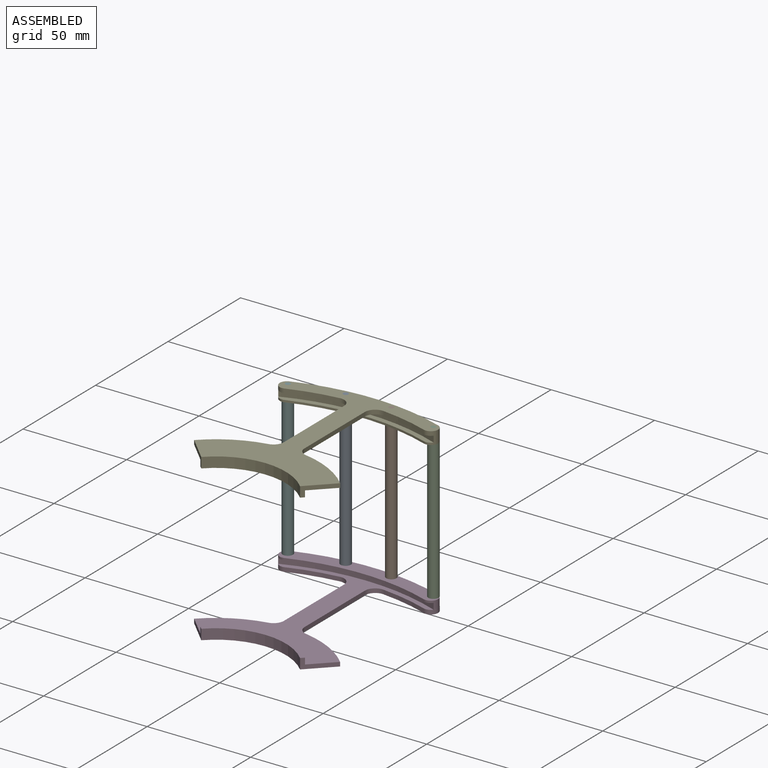
[diagram: assembled view]
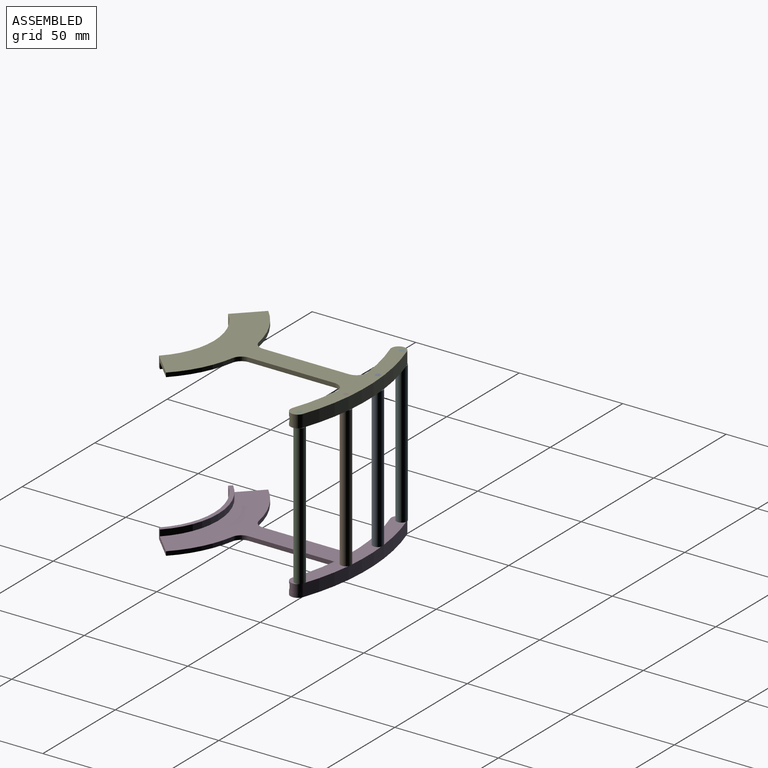
[diagram: assembled view, second angle]
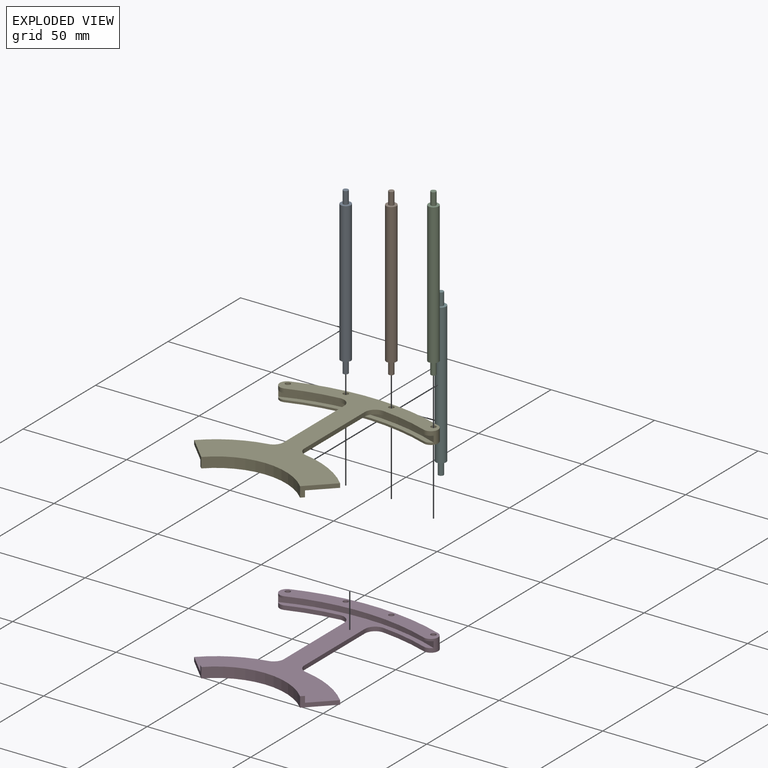
[diagram: exploded view]
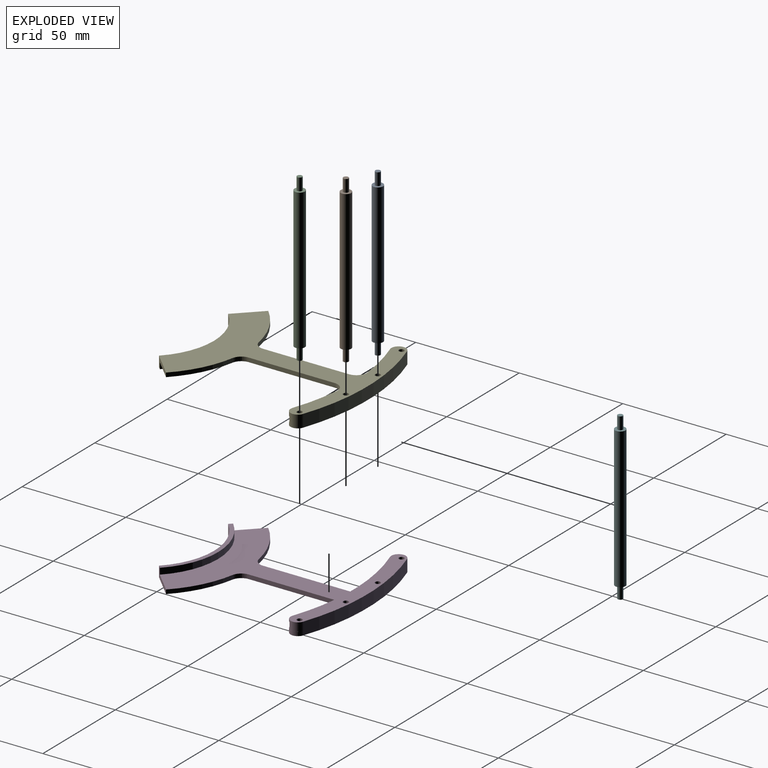
[diagram: exploded view, second angle]
ASSEMBLY  parts=6 mates=5
PART A: 7 faces, bbox 5x5x80 mm
  f0: cylinder r=1.25mm len=6mm, axis (0,0,-1), area 47.1mm2, adj f1,f3
  f1: plane 2.5x2.5mm, normal (0,0,-1), area 4.9mm2, adj f0
  f2: cylinder r=2.5mm len=68mm, axis (0,0,1), area 1068.1mm2, adj f3,f4
  f3: plane 5x5mm, normal (0,0,-1), area 14.7mm2, adj f0,f2
  f4: plane 5x5mm, normal (0,0,1), area 14.7mm2, adj f2,f5
  f5: cylinder r=1.25mm len=6mm, axis (0,0,-1), area 47.1mm2, adj f4,f6
  f6: plane 2.5x2.5mm, normal (0,0,1), area 4.9mm2, adj f5
PART B: 7 faces, bbox 5x5x80 mm
  f0: cylinder r=1.25mm len=6mm, axis (0,0,-1), area 47.1mm2, adj f1,f3
  f1: plane 2.5x2.5mm, normal (0,0,-1), area 4.9mm2, adj f0
  f2: cylinder r=2.5mm len=68mm, axis (0,0,1), area 1068.1mm2, adj f3,f4
  f3: plane 5x5mm, normal (0,0,-1), area 14.7mm2, adj f0,f2
  f4: plane 5x5mm, normal (0,0,1), area 14.7mm2, adj f2,f5
  f5: cylinder r=1.25mm len=6mm, axis (0,0,-1), area 47.1mm2, adj f4,f6
  f6: plane 2.5x2.5mm, normal (0,0,1), area 4.9mm2, adj f5
PART C: 7 faces, bbox 5x5x80 mm
  f0: cylinder r=1.25mm len=6mm, axis (0,0,-1), area 47.1mm2, adj f1,f3
  f1: plane 2.5x2.5mm, normal (0,0,-1), area 4.9mm2, adj f0
  f2: cylinder r=2.5mm len=68mm, axis (0,0,1), area 1068.1mm2, adj f3,f4
  f3: plane 5x5mm, normal (0,0,-1), area 14.7mm2, adj f0,f2
  f4: plane 5x5mm, normal (0,0,1), area 14.7mm2, adj f2,f5
  f5: cylinder r=1.25mm len=6mm, axis (0,0,-1), area 47.1mm2, adj f4,f6
  f6: plane 2.5x2.5mm, normal (0,0,1), area 4.9mm2, adj f5
PART D: 30 faces, bbox 76.5x84.1x6 mm
  f0: plane 84.14x76.5mm, normal (0,0,1), area 2104.3mm2, adj f2,f3,f4,f5,f6,f7,f8,f9
  f1: plane 78.22x75.8mm, normal (0,0,-1), area 1666mm2, adj f2,f3,f4,f5,f6,f7,f8,f10
  f2: plane 11.38x11.38mm, normal (0.71,-0.71,0), area 38.2mm2, adj f0,f1,f3,f17,f18,f19
  f3: cylinder r=49.85mm len=26.16mm, axis (0,0,-1), area 60mm2, adj f0,f1,f2,f4
  f4: cylinder r=5mm len=4.92mm, axis (0,0,-1), area 13.9mm2, adj f0,f1,f3,f5
  f5: plane 41.55x2mm, normal (1,0,0), area 83.1mm2, adj f0,f1,f4,f6
  f6: cylinder r=5mm len=5.52mm, axis (0,0,-1), area 16.8mm2, adj f0,f1,f5,f7
  f7: cylinder r=101mm len=23.07mm, axis (0,0,-1), area 47.4mm2, adj f0,f1,f6,f8
  f8: cylinder r=3.5mm len=6.8mm, axis (0,0,-1), area 52.7mm2, adj f0,f1,f7,f9,f20,f22,f23,f25
  f9: cylinder r=108mm len=71.83mm, axis (0,0,-1), area 439.3mm2, adj f0,f8,f10,f21,f25
  f10: cylinder r=3.5mm len=6.8mm, axis (0,0,-1), area 22mm2, adj f0,f1,f9,f11
  f11: cylinder r=101mm len=23.07mm, axis (0,0,-1), area 47.4mm2, adj f0,f1,f10,f12
  f12: cylinder r=5mm len=5.52mm, axis (0,0,-1), area 16.8mm2, adj f0,f1,f11,f13
  f13: plane 41.55x2mm, normal (-1,0,0), area 83.1mm2, adj f0,f1,f12,f14
  f14: cylinder r=5mm len=4.92mm, axis (0,0,-1), area 13.9mm2, adj f0,f1,f13,f15
  f15: cylinder r=49.85mm len=26.16mm, axis (0,0,-1), area 60mm2, adj f0,f1,f14,f16
  f16: plane 11.38x11.38mm, normal (-0.71,-0.71,0), area 38.2mm2, adj f0,f1,f15,f17,f18,f19
  f17: cylinder r=35.75mm len=50.56mm, axis (0,0,1), area 168.5mm2, adj f1,f2,f16,f19
  f18: cylinder r=33.75mm len=47.73mm, axis (0,0,1), area 265.1mm2, adj f0,f2,f16,f19
  f19: plane 50.56x11.89mm, normal (0,0,-1), area 109.2mm2, adj f2,f16,f17,f18
  f20: cylinder r=103.5mm len=75.07mm, axis (0,0,1), area 230.5mm2, adj f1,f8,f21,f22
  f21: cylinder r=3.5mm len=5.39mm, axis (0,0,1), area 26.2mm2, adj f1,f9,f20,f24,f25
  f22: plane 75.07x8.45mm, normal (0,0,1), area 185.5mm2, adj f8,f20,f23,f24
  f23: cylinder r=101mm len=67.18mm, axis (0,0,1), area 68.5mm2, adj f8,f22,f24,f25
  f24: cylinder r=3.5mm len=3.93mm, axis (0,0,1), area 4.4mm2, adj f21,f22,f23,f25
  f25: plane 76.47x12.95mm, normal (0,0,-1), area 514.6mm2, adj f8,f9,f21,f23,f24,f26,f27,f28
  f26: cylinder r=1.25mm len=6mm, axis (0,0,1), area 47.1mm2, adj f0,f25
  f27: cylinder r=1.25mm len=6mm, axis (0,0,1), area 47.1mm2, adj f0,f25
  f28: cylinder r=1.25mm len=6mm, axis (0,0,1), area 47.1mm2, adj f0,f25
  f29: cylinder r=1.25mm len=6mm, axis (0,0,1), area 47.1mm2, adj f0,f25
PART E: same geometry as D
PART F: 7 faces, bbox 5x5x80 mm
  f0: cylinder r=1.25mm len=6mm, axis (0,0,-1), area 47.1mm2, adj f1,f3
  f1: plane 2.5x2.5mm, normal (0,0,-1), area 4.9mm2, adj f0
  f2: cylinder r=2.5mm len=68mm, axis (0,0,1), area 1068.1mm2, adj f3,f4
  f3: plane 5x5mm, normal (0,0,-1), area 14.7mm2, adj f0,f2
  f4: plane 5x5mm, normal (0,0,1), area 14.7mm2, adj f2,f5
  f5: cylinder r=1.25mm len=6mm, axis (0,0,-1), area 47.1mm2, adj f4,f6
  f6: plane 2.5x2.5mm, normal (0,0,1), area 4.9mm2, adj f5
PLACE A t=(7.13,51.8,-16.32)mm
PLACE B t=(29.16,76.8,-16.32)mm
PLACE C t=(53.31,96.36,-16.32)mm
PLACE D rot(axis=(0,-1,0),180deg) t=(18.15,-78.37,-14.32)mm
PLACE E t=(18.15,-78.37,61.68)mm
PLACE F t=(-17.02,21.36,-16.32)mm
MATE fastened A.f0 <-> D.f26  axis (0,0,-1) through (7.13,26.8,-10.32)mm
MATE fastened F.f2 <-> D.f27  axis (0,0,-1) through (-17.02,21.36,-10.32)mm
MATE fastened E.f27 <-> C.f0  axis (0,0,1) through (53.31,21.36,63.68)mm
MATE fastened B.f0 <-> D.f28  axis (0,0,-1) through (29.16,26.8,-10.32)mm
MATE fastened C.f0 <-> D.f29  axis (0,0,-1) through (53.31,21.36,-10.32)mm
